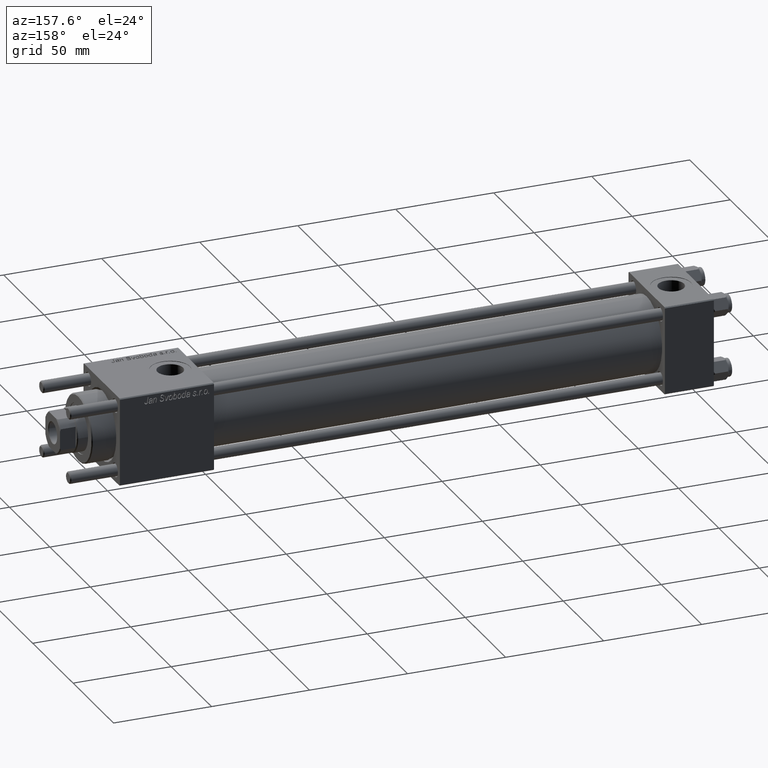
[diagram: clean part render]
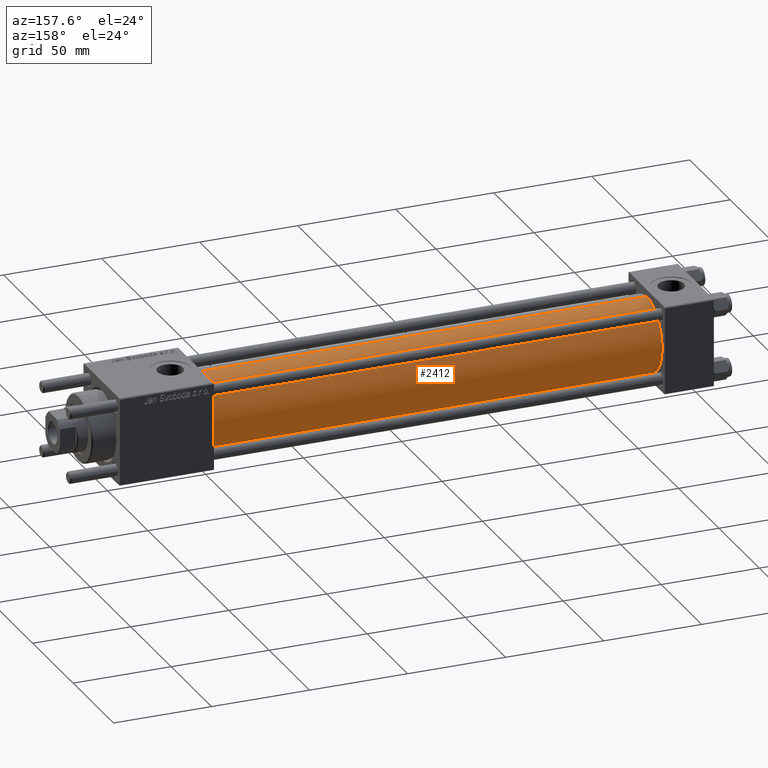
[diagram: same view with one face highlighted and labeled with its STEP entity id]
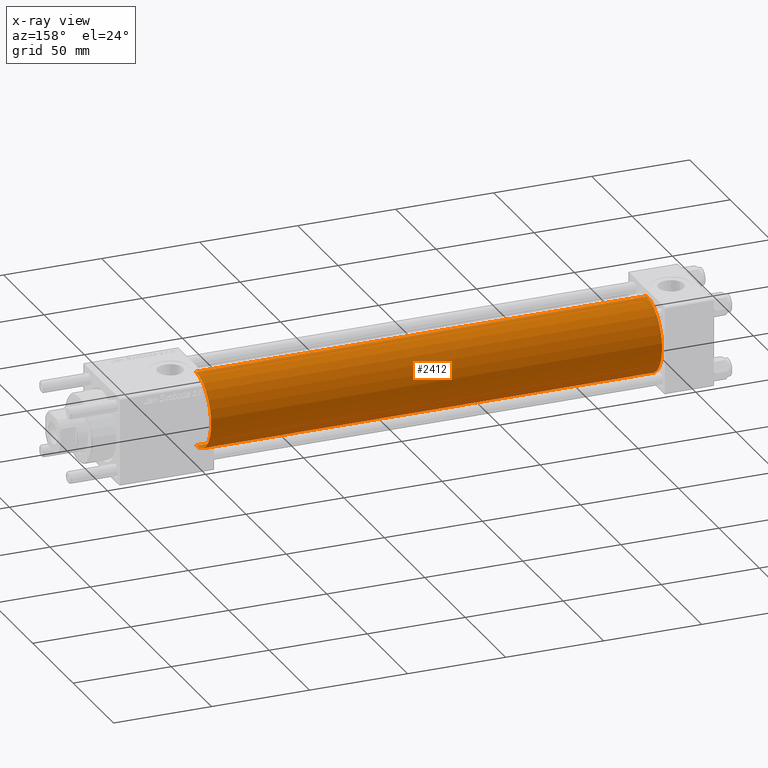
[diagram: x-ray of the same camera — body ghosted, the highlighted face saturated]
A machine part, auxiliary view. The second image highlights one B-rep face of the part: STEP entity #2412.
The next image is the same camera in x-ray: the body ghosted, the highlighted face saturated — about 0% of this face is hidden behind the body in this view.
In plain terms, the highlighted cylindrical surface (partial cylindrical patch) has radius 19 mm, axis along (-1, -0, -0).
Its self-contained STEP definition (entity closure, byte-faithful):
#1092 = AXIS2_PLACEMENT_3D ( 'NONE', #7246, #44265, #30028 ) ;
#1199 = DIRECTION ( 'NONE',  ( -1.000000000000000000, -0.000000000000000000, -0.000000000000000000 ) ) ;
#2412 = ADVANCED_FACE ( 'NONE', ( #35968 ), #32327, .T. ) ;
#5606 = CARTESIAN_POINT ( 'NONE',  ( 255.0000000000000000, -2.752562955852396712E-16, -19.00000000000000000 ) ) ;
#7246 = CARTESIAN_POINT ( 'NONE',  ( 24.99999999999999289, -2.602085213965210642E-15, 0.000000000000000000 ) ) ;
#11324 = VECTOR ( 'NONE', #1199, 1000.000000000000000 ) ;
#13520 = CARTESIAN_POINT ( 'NONE',  ( 255.0000000000000000, -2.602085213965210642E-15, 0.000000000000000000 ) ) ;
#16435 = EDGE_LOOP ( 'NONE', ( #29500, #21467, #47473, #46054 ) ) ;
#17579 = CIRCLE ( 'NONE', #24345, 19.00000000000000000 ) ;
#17601 = CARTESIAN_POINT ( 'NONE',  ( 24.99999999999999289, -2.752562955852396712E-16, -19.00000000000000000 ) ) ;
#18722 = EDGE_CURVE ( 'NONE', #59499, #45578, #19394, .T. ) ;
#19394 = LINE ( 'NONE', #37909, #11324 ) ;
#21467 = ORIENTED_EDGE ( 'NONE', *, *, #41602, .T. ) ;
#23091 = DIRECTION ( 'NONE',  ( -1.000000000000000000, -0.000000000000000000, -0.000000000000000000 ) ) ;
#24345 = AXIS2_PLACEMENT_3D ( 'NONE', #30501, #39602, #58109 ) ;
#29500 = ORIENTED_EDGE ( 'NONE', *, *, #36940, .F. ) ;
#30028 = DIRECTION ( 'NONE',  ( 0.000000000000000000, 0.000000000000000000, 1.000000000000000000 ) ) ;
#30501 = CARTESIAN_POINT ( 'NONE',  ( 255.0000000000000000, -2.602085213965210642E-15, 0.000000000000000000 ) ) ;
#31900 = LINE ( 'NONE', #59815, #49685 ) ;
#32055 = EDGE_CURVE ( 'NONE', #50893, #45578, #40791, .T. ) ;
#32327 = CYLINDRICAL_SURFACE ( 'NONE', #34165, 19.00000000000000000 ) ;
#34165 = AXIS2_PLACEMENT_3D ( 'NONE', #13520, #45991, #41111 ) ;
#35968 = FACE_OUTER_BOUND ( 'NONE', #16435, .T. ) ;
#36940 = EDGE_CURVE ( 'NONE', #48894, #59499, #17579, .T. ) ;
#37909 = CARTESIAN_POINT ( 'NONE',  ( 255.0000000000000000, -2.602085213965210642E-15, 19.00000000000000000 ) ) ;
#39602 = DIRECTION ( 'NONE',  ( 1.000000000000000000, 0.000000000000000000, 0.000000000000000000 ) ) ;
#40791 = CIRCLE ( 'NONE', #1092, 19.00000000000000000 ) ;
#41111 = DIRECTION ( 'NONE',  ( 0.000000000000000000, 0.000000000000000000, 1.000000000000000000 ) ) ;
#41602 = EDGE_CURVE ( 'NONE', #48894, #50893, #31900, .T. ) ;
#44265 = DIRECTION ( 'NONE',  ( 1.000000000000000000, -0.000000000000000000, 0.000000000000000000 ) ) ;
#44513 = CARTESIAN_POINT ( 'NONE',  ( 24.99999999999999289, -2.602085213965210642E-15, 19.00000000000000000 ) ) ;
#45578 = VERTEX_POINT ( 'NONE', #44513 ) ;
#45991 = DIRECTION ( 'NONE',  ( -1.000000000000000000, -0.000000000000000000, -0.000000000000000000 ) ) ;
#46054 = ORIENTED_EDGE ( 'NONE', *, *, #18722, .F. ) ;
#47010 = CARTESIAN_POINT ( 'NONE',  ( 255.0000000000000000, -2.602085213965210642E-15, 19.00000000000000000 ) ) ;
#47473 = ORIENTED_EDGE ( 'NONE', *, *, #32055, .T. ) ;
#48894 = VERTEX_POINT ( 'NONE', #5606 ) ;
#49685 = VECTOR ( 'NONE', #23091, 1000.000000000000000 ) ;
#50893 = VERTEX_POINT ( 'NONE', #17601 ) ;
#58109 = DIRECTION ( 'NONE',  ( 0.000000000000000000, 0.000000000000000000, -1.000000000000000000 ) ) ;
#59499 = VERTEX_POINT ( 'NONE', #47010 ) ;
#59815 = CARTESIAN_POINT ( 'NONE',  ( 255.0000000000000000, -2.752562955852396712E-16, -19.00000000000000000 ) ) ;